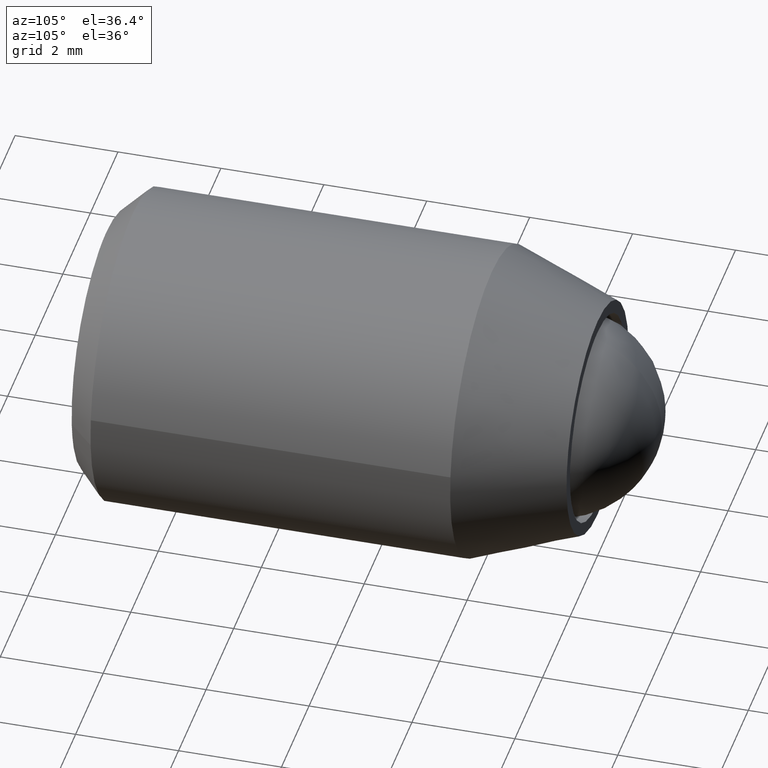
[diagram: clean part render]
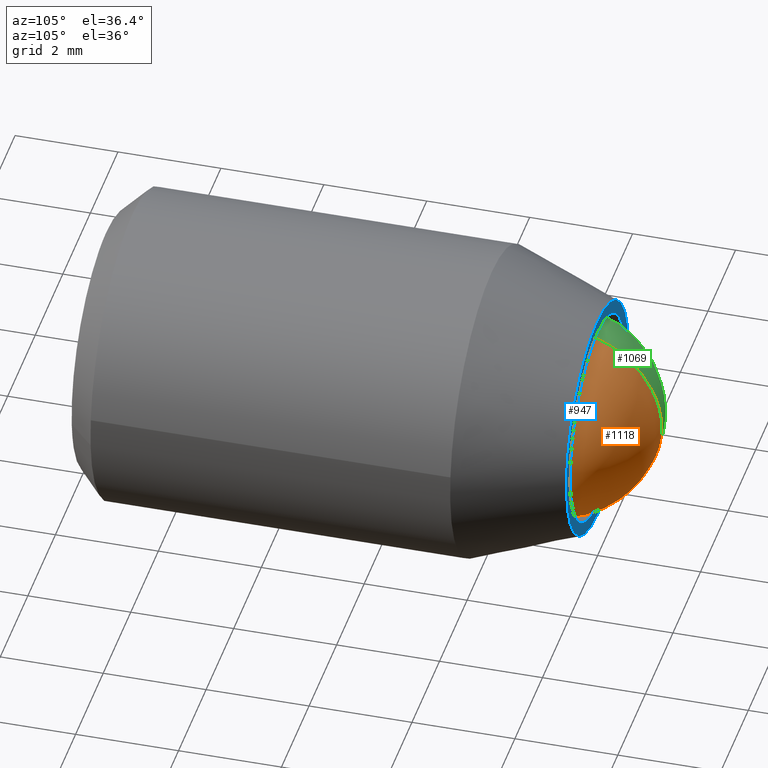
[diagram: same view with three faces highlighted in distinct colors, each labeled with its STEP entity id]
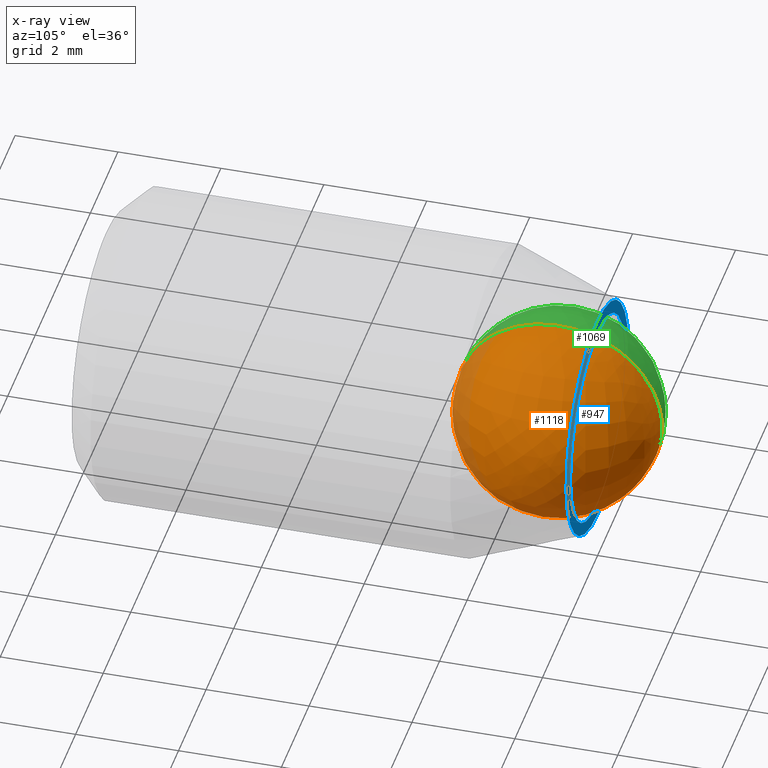
[diagram: x-ray of the same camera — body ghosted, the three highlighted faces saturated]
A machine part, auxiliary view with three faces highlighted in distinct colors.
The next image is the same camera in x-ray (body ghosted, the three faces saturated) — at least one of them is partly hidden behind the body in this view.
Their STEP definitions:

[orange] entity #1118 — the highlighted face is a freeform B-spline surface patch.
#1033=CARTESIAN_POINT('',(0.0,1.250000000000000,6.306723E-016));
#1034=VERTEX_POINT('',#1033);
#1035=CARTESIAN_POINT('',(0.0,-2.750000000000000,6.306723E-016));
#1036=VERTEX_POINT('',#1035);
#1037=CARTESIAN_POINT('',(0.0,1.250000000000000,6.306723E-016));
#1038=CARTESIAN_POINT('',(0.0,1.250000000000000,-2.000000000000000));
#1039=CARTESIAN_POINT('',(0.0,-0.750000000000000,-2.0));
#1040=CARTESIAN_POINT('',(0.0,-2.750000000000000,-2.000000000000000));
#1041=CARTESIAN_POINT('',(0.0,-2.750000000000000,6.306723E-016));
#1049=(BOUNDED_CURVE()B_SPLINE_CURVE(2,(#1037,#1038,#1039,#1040,#1041),.UNSPECIFIED.,.F.,.U.)B_SPLINE_CURVE_WITH_KNOTS((3,2,3),(0.0,0.500000000000000,1.0),.UNSPECIFIED.)CURVE()GEOMETRIC_REPRESENTATION_ITEM()RATIONAL_B_SPLINE_CURVE((1.0,0.707106781186548,1.0,0.707106781186548,1.0))REPRESENTATION_ITEM(''));
#1050=EDGE_CURVE('',#1034,#1036,#1049,.T.);
#1052=CARTESIAN_POINT('',(0.0,1.250000000000000,6.306723E-016));
#1053=CARTESIAN_POINT('',(0.0,1.250000000000000,2.000000000000000));
#1054=CARTESIAN_POINT('',(0.0,-0.750000000000000,2.0));
#1055=CARTESIAN_POINT('',(0.0,-2.750000000000000,2.000000000000000));
#1056=CARTESIAN_POINT('',(0.0,-2.750000000000000,6.306723E-016));
#1064=(BOUNDED_CURVE()B_SPLINE_CURVE(2,(#1052,#1053,#1054,#1055,#1056),.UNSPECIFIED.,.F.,.U.)B_SPLINE_CURVE_WITH_KNOTS((3,2,3),(0.0,0.500000000000000,1.0),.UNSPECIFIED.)CURVE()GEOMETRIC_REPRESENTATION_ITEM()RATIONAL_B_SPLINE_CURVE((1.0,0.707106781186548,1.0,0.707106781186548,1.0))REPRESENTATION_ITEM(''));
#1065=EDGE_CURVE('',#1034,#1036,#1064,.T.);
#1070=CARTESIAN_POINT('',(-0.750000000000000,-2.061011060212689,-1.311011060212688));
#1071=CARTESIAN_POINT('',(-0.490566037735849,-1.937330771513379,-1.583107695351171));
#1072=CARTESIAN_POINT('',(-0.095238095238095,-1.249432784842929,-1.997731139371716));
#1073=CARTESIAN_POINT('',(-0.095238095238095,-0.250567215157071,-1.997731139371716));
#1074=CARTESIAN_POINT('',(-0.490566037735849,0.437330771513379,-1.583107695351171));
#1075=CARTESIAN_POINT('',(-0.750000000000000,0.561011060212689,-1.311011060212688));
#1076=CARTESIAN_POINT('',(-0.490566037735849,-2.333107695351172,-1.187330771513378));
#1077=CARTESIAN_POINT('',(-0.095238095238095,-2.248298354528787,-1.498298354528787));
#1078=CARTESIAN_POINT('',(0.580645161290322,-1.426650869787194,-2.029952609361583));
#1079=CARTESIAN_POINT('',(0.580645161290322,-0.073349130212806,-2.029952609361583));
#1080=CARTESIAN_POINT('',(-0.095238095238095,0.748298354528787,-1.498298354528787));
#1081=CARTESIAN_POINT('',(-0.490566037735849,0.833107695351172,-1.187330771513378));
#1082=CARTESIAN_POINT('',(-0.095238095238095,-2.747731139371717,-0.499432784842929));
#1083=CARTESIAN_POINT('',(0.580645161290322,-2.779952609361583,-0.676650869787194));
#1084=CARTESIAN_POINT('',(1.999999999999999,-1.798808848170151,-1.048808848170151));
#1085=CARTESIAN_POINT('',(1.999999999999999,0.298808848170151,-1.048808848170151));
#1086=CARTESIAN_POINT('',(0.580645161290322,1.279952609361583,-0.676650869787194));
#1087=CARTESIAN_POINT('',(-0.095238095238095,1.247731139371717,-0.499432784842929));
#1088=CARTESIAN_POINT('',(-0.095238095238095,-2.747731139371717,0.499432784842930));
#1089=CARTESIAN_POINT('',(0.580645161290322,-2.779952609361583,0.676650869787195));
#1090=CARTESIAN_POINT('',(1.999999999999999,-1.798808848170151,1.048808848170152));
#1091=CARTESIAN_POINT('',(1.999999999999999,0.298808848170151,1.048808848170152));
#1092=CARTESIAN_POINT('',(0.580645161290322,1.279952609361583,0.676650869787195));
#1093=CARTESIAN_POINT('',(-0.095238095238095,1.247731139371717,0.499432784842930));
#1094=CARTESIAN_POINT('',(-0.490566037735849,-2.333107695351172,1.187330771513379));
#1095=CARTESIAN_POINT('',(-0.095238095238095,-2.248298354528787,1.498298354528788));
#1096=CARTESIAN_POINT('',(0.580645161290322,-1.426650869787194,2.029952609361583));
#1097=CARTESIAN_POINT('',(0.580645161290322,-0.073349130212806,2.029952609361583));
#1098=CARTESIAN_POINT('',(-0.095238095238095,0.748298354528787,1.498298354528788));
#1099=CARTESIAN_POINT('',(-0.490566037735849,0.833107695351172,1.187330771513379));
#1100=CARTESIAN_POINT('',(-0.750000000000000,-2.061011060212689,1.311011060212690));
#1101=CARTESIAN_POINT('',(-0.490566037735849,-1.937330771513379,1.583107695351173));
#1102=CARTESIAN_POINT('',(-0.095238095238095,-1.249432784842929,1.997731139371718));
#1103=CARTESIAN_POINT('',(-0.095238095238095,-0.250567215157071,1.997731139371718));
#1104=CARTESIAN_POINT('',(-0.490566037735849,0.437330771513379,1.583107695351173));
#1105=CARTESIAN_POINT('',(-0.750000000000000,0.561011060212689,1.311011060212690));
#1113=(BOUNDED_SURFACE()B_SPLINE_SURFACE(2,2,((#1070,#1076,#1082,#1088,#1094,#1100),(#1071,#1077,#1083,#1089,#1095,#1101),(#1072,#1078,#1084,#1090,#1096,#1102),(#1073,#1079,#1085,#1091,#1097,#1103),(#1074,#1080,#1086,#1092,#1098,#1104),(#1075,#1081,#1087,#1093,#1099,#1105)),.UNSPECIFIED.,.F.,.F.,.U.)GEOMETRIC_REPRESENTATION_ITEM()QUASI_UNIFORM_SURFACE()RATIONAL_B_SPLINE_SURFACE(((3.200000000000000,2.650000000000000,2.100000000000000,2.100000000000000,2.650000000000000,3.200000000000000),(2.650000000000000,2.100000000000000,1.550000000000000,1.550000000000000,2.100000000000000,2.650000000000000),(2.100000000000000,1.550000000000000,1.0,1.0,1.550000000000000,2.100000000000000),(2.100000000000000,1.550000000000000,1.0,1.0,1.550000000000000,2.100000000000000),(2.650000000000000,2.100000000000000,1.550000000000000,1.550000000000000,2.100000000000000,2.650000000000000),(3.200000000000000,2.650000000000000,2.100000000000000,2.100000000000000,2.650000000000000,3.200000000000000)))REPRESENTATION_ITEM('')SURFACE());
#1114=ORIENTED_EDGE('',*,*,#1065,.T.);
#1115=ORIENTED_EDGE('',*,*,#1050,.F.);
#1116=EDGE_LOOP('',(#1114,#1115));
#1117=FACE_OUTER_BOUND('',#1116,.T.);
#1118=ADVANCED_FACE('',(#1117),#1113,.T.);

[blue] entity #947 — the highlighted face is a freeform B-spline surface patch.
#104=CARTESIAN_POINT('',(1.996269777641058,-9.020562E-017,-0.122094122987751));
#105=VERTEX_POINT('',#104);
#111=CARTESIAN_POINT('',(0.0,0.0,-2.0));
#112=VERTEX_POINT('',#111);
#113=CARTESIAN_POINT('',(0.0,0.0,-2.0));
#114=CARTESIAN_POINT('',(1.881414925019934,0.0,-2.000000000000000));
#115=CARTESIAN_POINT('',(1.996269777641058,-9.020562E-017,-0.122094122987751));
#123=(BOUNDED_CURVE()B_SPLINE_CURVE(2,(#113,#114,#115),.UNSPECIFIED.,.F.,.U.)B_SPLINE_CURVE_WITH_KNOTS((3,3),(0.500000000000000,0.739333217749817),.UNSPECIFIED.)CURVE()GEOMETRIC_REPRESENTATION_ITEM()RATIONAL_B_SPLINE_CURVE((1.0,0.719603693937101,0.976072589275771))REPRESENTATION_ITEM(''));
#124=EDGE_CURVE('',#112,#105,#123,.T.);
#126=CARTESIAN_POINT('',(-1.986019104141868,-8.518285E-017,0.236068036767671));
#127=VERTEX_POINT('',#126);
#128=CARTESIAN_POINT('',(-1.986019104141868,-8.518285E-017,0.236068036767671));
#129=CARTESIAN_POINT('',(-2.0,0.0,0.118447802185172));
#130=CARTESIAN_POINT('',(-2.0,0.0,0.0));
#131=CARTESIAN_POINT('',(-2.000000000000000,0.0,-2.000000000000000));
#132=CARTESIAN_POINT('',(0.0,0.0,-2.0));
#140=(BOUNDED_CURVE()B_SPLINE_CURVE(2,(#128,#129,#130,#131,#132),.UNSPECIFIED.,.F.,.U.)B_SPLINE_CURVE_WITH_KNOTS((3,2,3),(0.229562547131914,0.250000000000000,0.500000000000000),.UNSPECIFIED.)CURVE()GEOMETRIC_REPRESENTATION_ITEM()RATIONAL_B_SPLINE_CURVE((0.956026898478838,0.976056034580473,1.0,0.707106781186548,1.0))REPRESENTATION_ITEM(''));
#141=EDGE_CURVE('',#127,#112,#140,.T.);
#185=CARTESIAN_POINT('',(0.0,0.0,2.0));
#186=VERTEX_POINT('',#185);
#187=CARTESIAN_POINT('',(0.0,0.0,2.0));
#188=CARTESIAN_POINT('',(-1.776349831111262,0.0,2.000000000000000));
#189=CARTESIAN_POINT('',(-1.986019104141868,-8.518285E-017,0.236068036767672));
#197=(BOUNDED_CURVE()B_SPLINE_CURVE(2,(#187,#188,#189),.UNSPECIFIED.,.F.,.U.)B_SPLINE_CURVE_WITH_KNOTS((3,3),(0.0,0.229562547131914),.UNSPECIFIED.)CURVE()GEOMETRIC_REPRESENTATION_ITEM()RATIONAL_B_SPLINE_CURVE((1.0,0.731050746606075,0.956026898478838))REPRESENTATION_ITEM(''));
#198=EDGE_CURVE('',#186,#127,#197,.T.);
#200=CARTESIAN_POINT('',(1.996269777641058,-9.020562E-017,-0.122094122987751));
#201=CARTESIAN_POINT('',(2.000000000000000,0.0,-0.061104044412081));
#202=CARTESIAN_POINT('',(2.0,0.0,0.0));
#203=CARTESIAN_POINT('',(2.000000000000000,0.0,2.000000000000000));
#204=CARTESIAN_POINT('',(0.0,0.0,2.0));
#212=(BOUNDED_CURVE()B_SPLINE_CURVE(2,(#200,#201,#202,#203,#204),.UNSPECIFIED.,.F.,.U.)B_SPLINE_CURVE_WITH_KNOTS((3,2,3),(0.739333217749817,0.750000000000000,1.0),.UNSPECIFIED.)CURVE()GEOMETRIC_REPRESENTATION_ITEM()RATIONAL_B_SPLINE_CURVE((0.976072589275771,0.987503087249447,1.0,0.707106781186548,1.0))REPRESENTATION_ITEM(''));
#213=EDGE_CURVE('',#105,#186,#212,.T.);
#260=CARTESIAN_POINT('',(-1.824690539183465,-1.269605E-013,-1.316436263635491));
#261=VERTEX_POINT('',#260);
#262=CARTESIAN_POINT('',(0.0,0.0,-2.250000000000001));
#263=VERTEX_POINT('',#262);
#264=CARTESIAN_POINT('',(-1.824690539183464,-1.269605E-013,-1.316436263635491));
#265=CARTESIAN_POINT('',(-1.151164190152913,0.0,-2.250000000000000));
#266=CARTESIAN_POINT('',(0.0,0.0,-2.250000000000001));
#274=(BOUNDED_CURVE()B_SPLINE_CURVE(2,(#264,#265,#266),.UNSPECIFIED.,.F.,.U.)B_SPLINE_CURVE_WITH_KNOTS((3,3),(0.850743050382167,1.0),.UNSPECIFIED.)CURVE()GEOMETRIC_REPRESENTATION_ITEM()RATIONAL_B_SPLINE_CURVE((0.859068214727268,0.825134606384623,1.0))REPRESENTATION_ITEM(''));
#275=EDGE_CURVE('',#261,#263,#274,.T.);
#277=CARTESIAN_POINT('',(0.0,0.0,2.249999999999999));
#278=VERTEX_POINT('',#277);
#279=CARTESIAN_POINT('',(0.0,0.0,-2.250000000000001));
#280=CARTESIAN_POINT('',(2.250000000000000,0.0,-2.250000000000000));
#281=CARTESIAN_POINT('',(2.250000000000000,0.0,-6.765950E-016));
#282=CARTESIAN_POINT('',(2.250000000000000,0.0,2.249999999999999));
#283=CARTESIAN_POINT('',(0.0,0.0,2.249999999999999));
#291=(BOUNDED_CURVE()B_SPLINE_CURVE(2,(#279,#280,#281,#282,#283),.UNSPECIFIED.,.F.,.U.)B_SPLINE_CURVE_WITH_KNOTS((3,2,3),(0.0,0.250000000000000,0.500000000000000),.UNSPECIFIED.)CURVE()GEOMETRIC_REPRESENTATION_ITEM()RATIONAL_B_SPLINE_CURVE((1.0,0.707106781186547,1.0,0.707106781186547,1.0))REPRESENTATION_ITEM(''));
#292=EDGE_CURVE('',#263,#278,#291,.T.);
#294=CARTESIAN_POINT('',(-2.245803296449229,-8.940522E-013,0.137359213958318));
#295=VERTEX_POINT('',#294);
#296=CARTESIAN_POINT('',(0.0,0.0,2.249999999999999));
#297=CARTESIAN_POINT('',(-2.116588650528630,0.0,2.250000000000000));
#298=CARTESIAN_POINT('',(-2.245803296449229,-8.940522E-013,0.137359213958318));
#306=(BOUNDED_CURVE()B_SPLINE_CURVE(2,(#296,#297,#298),.UNSPECIFIED.,.F.,.U.)B_SPLINE_CURVE_WITH_KNOTS((3,3),(0.500000000000000,0.739332962241221),.UNSPECIFIED.)CURVE()GEOMETRIC_REPRESENTATION_ITEM()RATIONAL_B_SPLINE_CURVE((1.0,0.719603993284041,0.976072041671600))REPRESENTATION_ITEM(''));
#307=EDGE_CURVE('',#278,#295,#306,.T.);
#400=CARTESIAN_POINT('',(-2.245803296449229,-8.940522E-013,0.137359213958318));
#401=CARTESIAN_POINT('',(-2.250000000000001,0.0,0.068743717426708));
#402=CARTESIAN_POINT('',(-2.250000000000000,0.0,-6.765950E-016));
#403=CARTESIAN_POINT('',(-2.250000000000000,0.0,-0.726921852027605));
#404=CARTESIAN_POINT('',(-1.824690539183465,-1.269605E-013,-1.316436263635491));
#412=(BOUNDED_CURVE()B_SPLINE_CURVE(2,(#400,#401,#402,#403,#404),.UNSPECIFIED.,.F.,.U.)B_SPLINE_CURVE_WITH_KNOTS((3,2,3),(0.739332962241220,0.750000000000000,0.850743050382166),.UNSPECIFIED.)CURVE()GEOMETRIC_REPRESENTATION_ITEM()RATIONAL_B_SPLINE_CURVE((0.976072041671598,0.987502787902505,1.0,0.881972174801926,0.859068214727269))REPRESENTATION_ITEM(''));
#413=EDGE_CURVE('',#295,#261,#412,.T.);
#930=CARTESIAN_POINT('',(-2.474708163199642,0.0,-2.474774991278128));
#931=CARTESIAN_POINT('',(-2.474708163199642,0.0,2.474775111977531));
#932=CARTESIAN_POINT('',(2.474771932718971,0.0,-2.474774991278128));
#933=CARTESIAN_POINT('',(2.474771932718971,0.0,2.474775111977531));
#934=B_SPLINE_SURFACE_WITH_KNOTS('',1,1,((#930,#932),(#931,#933)),.UNSPECIFIED.,.F.,.F.,.U.,(2,2),(2,2),(0.0,4.949550103255659),(0.0,4.949480095918612),.UNSPECIFIED.);
#935=ORIENTED_EDGE('',*,*,#275,.F.);
#936=ORIENTED_EDGE('',*,*,#413,.F.);
#937=ORIENTED_EDGE('',*,*,#307,.F.);
#938=ORIENTED_EDGE('',*,*,#292,.F.);
#939=EDGE_LOOP('',(#935,#936,#937,#938));
#940=FACE_OUTER_BOUND('',#939,.T.);
#941=ORIENTED_EDGE('',*,*,#124,.T.);
#942=ORIENTED_EDGE('',*,*,#213,.T.);
#943=ORIENTED_EDGE('',*,*,#198,.T.);
#944=ORIENTED_EDGE('',*,*,#141,.T.);
#945=EDGE_LOOP('',(#941,#942,#943,#944));
#946=FACE_BOUND('',#945,.T.);
#947=ADVANCED_FACE('',(#940,#946),#934,.T.);

[green] entity #1069 — the highlighted face is a freeform B-spline surface patch.
#989=CARTESIAN_POINT('',(0.750000000000000,-2.061011060212689,1.311011060212690));
#990=CARTESIAN_POINT('',(0.490566037735849,-1.937330771513379,1.583107695351173));
#991=CARTESIAN_POINT('',(0.095238095238095,-1.249432784842929,1.997731139371718));
#992=CARTESIAN_POINT('',(0.095238095238095,-0.250567215157071,1.997731139371718));
#993=CARTESIAN_POINT('',(0.490566037735849,0.437330771513379,1.583107695351173));
#994=CARTESIAN_POINT('',(0.750000000000000,0.561011060212689,1.311011060212690));
#995=CARTESIAN_POINT('',(0.490566037735849,-2.333107695351172,1.187330771513379));
#996=CARTESIAN_POINT('',(0.095238095238095,-2.248298354528787,1.498298354528788));
#997=CARTESIAN_POINT('',(-0.580645161290322,-1.426650869787194,2.029952609361583));
#998=CARTESIAN_POINT('',(-0.580645161290322,-0.073349130212806,2.029952609361583));
#999=CARTESIAN_POINT('',(0.095238095238095,0.748298354528787,1.498298354528788));
#1000=CARTESIAN_POINT('',(0.490566037735849,0.833107695351172,1.187330771513379));
#1001=CARTESIAN_POINT('',(0.095238095238095,-2.747731139371717,0.499432784842930));
#1002=CARTESIAN_POINT('',(-0.580645161290322,-2.779952609361583,0.676650869787195));
#1003=CARTESIAN_POINT('',(-1.999999999999999,-1.798808848170151,1.048808848170152));
#1004=CARTESIAN_POINT('',(-1.999999999999999,0.298808848170151,1.048808848170152));
#1005=CARTESIAN_POINT('',(-0.580645161290322,1.279952609361583,0.676650869787195));
#1006=CARTESIAN_POINT('',(0.095238095238095,1.247731139371717,0.499432784842930));
#1007=CARTESIAN_POINT('',(0.095238095238095,-2.747731139371717,-0.499432784842929));
#1008=CARTESIAN_POINT('',(-0.580645161290322,-2.779952609361583,-0.676650869787194));
#1009=CARTESIAN_POINT('',(-1.999999999999999,-1.798808848170151,-1.048808848170151));
#1010=CARTESIAN_POINT('',(-1.999999999999999,0.298808848170151,-1.048808848170151));
#1011=CARTESIAN_POINT('',(-0.580645161290322,1.279952609361583,-0.676650869787194));
#1012=CARTESIAN_POINT('',(0.095238095238095,1.247731139371717,-0.499432784842929));
#1013=CARTESIAN_POINT('',(0.490566037735849,-2.333107695351172,-1.187330771513378));
#1014=CARTESIAN_POINT('',(0.095238095238095,-2.248298354528787,-1.498298354528787));
#1015=CARTESIAN_POINT('',(-0.580645161290322,-1.426650869787194,-2.029952609361583));
#1016=CARTESIAN_POINT('',(-0.580645161290322,-0.073349130212806,-2.029952609361583));
#1017=CARTESIAN_POINT('',(0.095238095238095,0.748298354528787,-1.498298354528787));
#1018=CARTESIAN_POINT('',(0.490566037735849,0.833107695351172,-1.187330771513378));
#1019=CARTESIAN_POINT('',(0.750000000000000,-2.061011060212689,-1.311011060212688));
#1020=CARTESIAN_POINT('',(0.490566037735849,-1.937330771513379,-1.583107695351171));
#1021=CARTESIAN_POINT('',(0.095238095238095,-1.249432784842929,-1.997731139371716));
#1022=CARTESIAN_POINT('',(0.095238095238095,-0.250567215157071,-1.997731139371716));
#1023=CARTESIAN_POINT('',(0.490566037735849,0.437330771513379,-1.583107695351171));
#1024=CARTESIAN_POINT('',(0.750000000000000,0.561011060212689,-1.311011060212688));
#1032=(BOUNDED_SURFACE()B_SPLINE_SURFACE(2,2,((#989,#995,#1001,#1007,#1013,#1019),(#990,#996,#1002,#1008,#1014,#1020),(#991,#997,#1003,#1009,#1015,#1021),(#992,#998,#1004,#1010,#1016,#1022),(#993,#999,#1005,#1011,#1017,#1023),(#994,#1000,#1006,#1012,#1018,#1024)),.UNSPECIFIED.,.F.,.F.,.U.)GEOMETRIC_REPRESENTATION_ITEM()QUASI_UNIFORM_SURFACE()RATIONAL_B_SPLINE_SURFACE(((3.200000000000000,2.650000000000000,2.100000000000000,2.100000000000000,2.650000000000000,3.200000000000000),(2.650000000000000,2.100000000000000,1.550000000000000,1.550000000000000,2.100000000000000,2.650000000000000),(2.100000000000000,1.550000000000000,1.0,1.0,1.550000000000000,2.100000000000000),(2.100000000000000,1.550000000000000,1.0,1.0,1.550000000000000,2.100000000000000),(2.650000000000000,2.100000000000000,1.550000000000000,1.550000000000000,2.100000000000000,2.650000000000000),(3.200000000000000,2.650000000000000,2.100000000000000,2.100000000000000,2.650000000000000,3.200000000000000)))REPRESENTATION_ITEM('')SURFACE());
#1033=CARTESIAN_POINT('',(0.0,1.250000000000000,6.306723E-016));
#1034=VERTEX_POINT('',#1033);
#1035=CARTESIAN_POINT('',(0.0,-2.750000000000000,6.306723E-016));
#1036=VERTEX_POINT('',#1035);
#1037=CARTESIAN_POINT('',(0.0,1.250000000000000,6.306723E-016));
#1038=CARTESIAN_POINT('',(0.0,1.250000000000000,-2.000000000000000));
#1039=CARTESIAN_POINT('',(0.0,-0.750000000000000,-2.0));
#1040=CARTESIAN_POINT('',(0.0,-2.750000000000000,-2.000000000000000));
#1041=CARTESIAN_POINT('',(0.0,-2.750000000000000,6.306723E-016));
#1049=(BOUNDED_CURVE()B_SPLINE_CURVE(2,(#1037,#1038,#1039,#1040,#1041),.UNSPECIFIED.,.F.,.U.)B_SPLINE_CURVE_WITH_KNOTS((3,2,3),(0.0,0.500000000000000,1.0),.UNSPECIFIED.)CURVE()GEOMETRIC_REPRESENTATION_ITEM()RATIONAL_B_SPLINE_CURVE((1.0,0.707106781186548,1.0,0.707106781186548,1.0))REPRESENTATION_ITEM(''));
#1050=EDGE_CURVE('',#1034,#1036,#1049,.T.);
#1051=ORIENTED_EDGE('',*,*,#1050,.T.);
#1052=CARTESIAN_POINT('',(0.0,1.250000000000000,6.306723E-016));
#1053=CARTESIAN_POINT('',(0.0,1.250000000000000,2.000000000000000));
#1054=CARTESIAN_POINT('',(0.0,-0.750000000000000,2.0));
#1055=CARTESIAN_POINT('',(0.0,-2.750000000000000,2.000000000000000));
#1056=CARTESIAN_POINT('',(0.0,-2.750000000000000,6.306723E-016));
#1064=(BOUNDED_CURVE()B_SPLINE_CURVE(2,(#1052,#1053,#1054,#1055,#1056),.UNSPECIFIED.,.F.,.U.)B_SPLINE_CURVE_WITH_KNOTS((3,2,3),(0.0,0.500000000000000,1.0),.UNSPECIFIED.)CURVE()GEOMETRIC_REPRESENTATION_ITEM()RATIONAL_B_SPLINE_CURVE((1.0,0.707106781186548,1.0,0.707106781186548,1.0))REPRESENTATION_ITEM(''));
#1065=EDGE_CURVE('',#1034,#1036,#1064,.T.);
#1066=ORIENTED_EDGE('',*,*,#1065,.F.);
#1067=EDGE_LOOP('',(#1051,#1066));
#1068=FACE_OUTER_BOUND('',#1067,.T.);
#1069=ADVANCED_FACE('',(#1068),#1032,.T.);